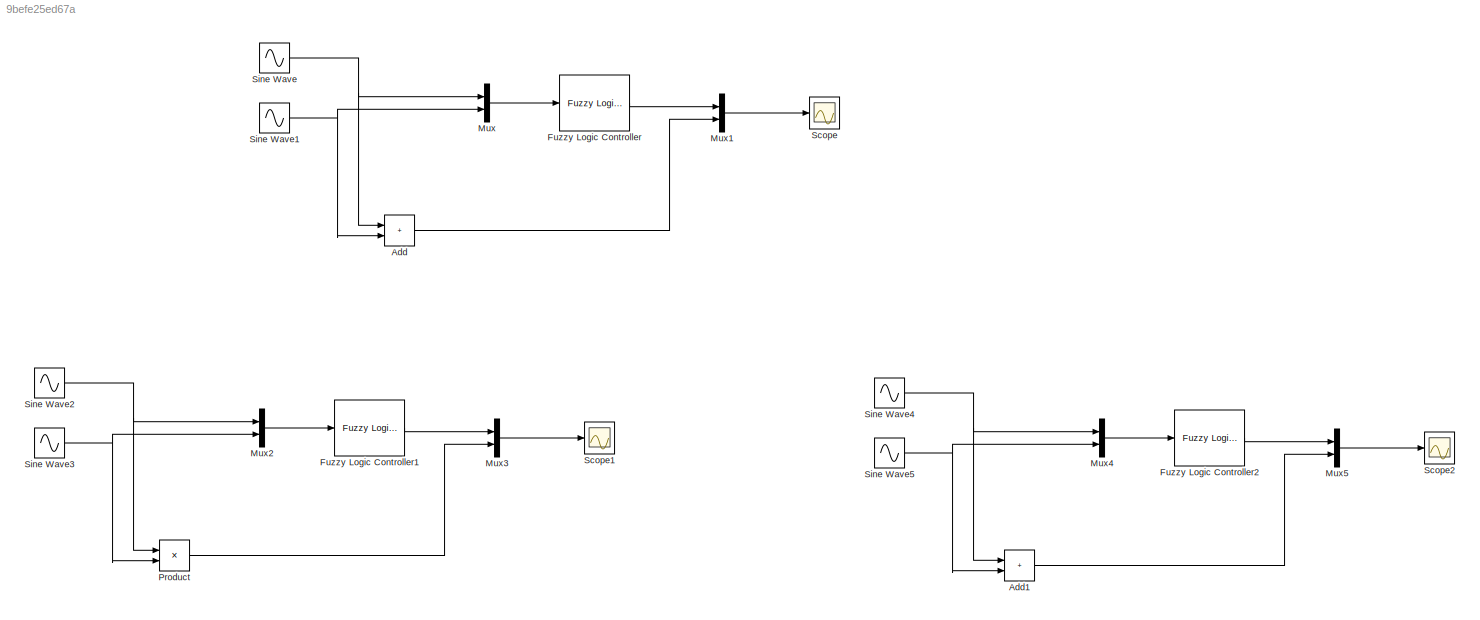
MODEL slx_9befe25ed67a
KIND model
CONFIG AbsTol = auto
CONFIG EnableMultiTasking = off
CONFIG FixedStep = auto
CONFIG MaxStep = 0.01
CONFIG MinStep = auto
CONFIG RelTol = 1e-3
CONFIG SampleTimeConstraint = Unconstrained
CONFIG SolverName = VariableStepDiscrete
CONFIG StartTime = 0.0
CONFIG StopTime = 10.0
BLOCK [Sum] Add
  IconShape = rectangular
BLOCK [Sum] Add1
  IconShape = rectangular
BLOCK [Reference] Fuzzy Logic Controller  REF=fuzblock/Fuzzy Logic   (lib defined in mdl_858b3b3e7478)
Controller
  SourceBlock = fuzblock/Fuzzy Logic \nController
  SourceType = Fuzzy Inference System
BLOCK [Reference] Fuzzy Logic Controller1  REF=fuzblock/Fuzzy Logic   (lib defined in mdl_858b3b3e7478)
Controller
  SourceBlock = fuzblock/Fuzzy Logic \nController
  SourceType = Fuzzy Inference System
BLOCK [Reference] Fuzzy Logic Controller2  REF=fuzblock/Fuzzy Logic   (lib defined in mdl_858b3b3e7478)
Controller
  SourceBlock = fuzblock/Fuzzy Logic \nController
  SourceType = Fuzzy Inference System
BLOCK [Mux] Mux
  DisplayOption = bar
  Inputs = 2
BLOCK [Mux] Mux1
  DisplayOption = bar
  Inputs = 2
BLOCK [Mux] Mux2
  DisplayOption = bar
  Inputs = 2
BLOCK [Mux] Mux3
  DisplayOption = bar
  Inputs = 2
BLOCK [Mux] Mux4
  DisplayOption = bar
  Inputs = 2
BLOCK [Mux] Mux5
  DisplayOption = bar
  Inputs = 2
BLOCK [Product] Product
BLOCK [Scope] Scope
  Floating = off
  NumInputPorts = 1
  ScopeSpecificationString = Simulink.scopes.TimeScopeBlockCfg('CurrentConfiguration', extmgr.ConfigurationSet(extmgr.Configuration('Core','General UI',true,'FigureColor',[1 1 1]),extmgr.Configuration('Core','Source UI',true),extmgr.Configuration('Sources','WiredSimulink',true),extmgr.Configuration('Visuals','Time Domain',true,'SerializedDisplays',{struct('MinYLimReal','1.56917','MaxYLimReal','18.43084','YLabelReal','','MinYL...<+1787ch>
BLOCK [Scope] Scope1
  Floating = off
  NumInputPorts = 1
  ScopeSpecificationString = Simulink.scopes.TimeScopeBlockCfg('CurrentConfiguration', extmgr.ConfigurationSet(extmgr.Configuration('Core','General UI',true,'FigureColor',[1 1 1]),extmgr.Configuration('Core','Source UI',true),extmgr.Configuration('Sources','WiredSimulink',true,'DataLoggingVariableName','ScopeData1'),extmgr.Configuration('Visuals','Time Domain',true,'SerializedDisplays',{struct('MinYLimReal','-8.74412','MaxYLi...<+1775ch>
BLOCK [Scope] Scope2
  Floating = off
  NumInputPorts = 1
  ScopeSpecificationString = Simulink.scopes.TimeScopeBlockCfg('CurrentConfiguration', extmgr.ConfigurationSet(extmgr.Configuration('Core','General UI',true,'FigureColor',[1 1 1]),extmgr.Configuration('Core','Source UI',true),extmgr.Configuration('Sources','WiredSimulink',true,'DataLoggingVariableName','ScopeData2'),extmgr.Configuration('Visuals','Time Domain',true,'SerializedDisplays',{struct('MinYLimReal','1.56917','MaxYLim...<+1796ch>
BLOCK [Sin] Sine Wave
  Amplitude = 5
  Bias = 5
  SampleTime = 0
BLOCK [Sin] Sine Wave1
  Amplitude = 4
  Bias = 5
  Frequency = 3
  SampleTime = 0
BLOCK [Sin] Sine Wave2
  Amplitude = 5
  Bias = 5
  SampleTime = 0
BLOCK [Sin] Sine Wave3
  Amplitude = 4
  Bias = 5
  Frequency = 3
  SampleTime = 0
BLOCK [Sin] Sine Wave4
  Amplitude = 5
  Bias = 5
  SampleTime = 0
BLOCK [Sin] Sine Wave5
  Amplitude = 4
  Bias = 5
  Frequency = 3
  SampleTime = 0
LINE Add1:1 -> Mux5:2
LINE Add:1 -> Mux1:2
LINE Fuzzy Logic Controller1:1 -> Mux3:1
LINE Fuzzy Logic Controller2:1 -> Mux5:1
LINE Fuzzy Logic Controller:1 -> Mux1:1
LINE Mux1:1 -> Scope:1
LINE Mux2:1 -> Fuzzy Logic Controller1:1
LINE Mux3:1 -> Scope1:1
LINE Mux4:1 -> Fuzzy Logic Controller2:1
LINE Mux5:1 -> Scope2:1
LINE Mux:1 -> Fuzzy Logic Controller:1
LINE Product:1 -> Mux3:2
NET Sine Wave1:1 -> Add:2, Mux:2
NET Sine Wave2:1 -> Mux2:1, Product:1
NET Sine Wave3:1 -> Mux2:2, Product:2
NET Sine Wave4:1 -> Add1:1, Mux4:1
NET Sine Wave5:1 -> Add1:2, Mux4:2
NET Sine Wave:1 -> Add:1, Mux:1
note: NET lines group one-source signal fan-out (src -> all destinations, sorted); 1:1 wires keep LINE
